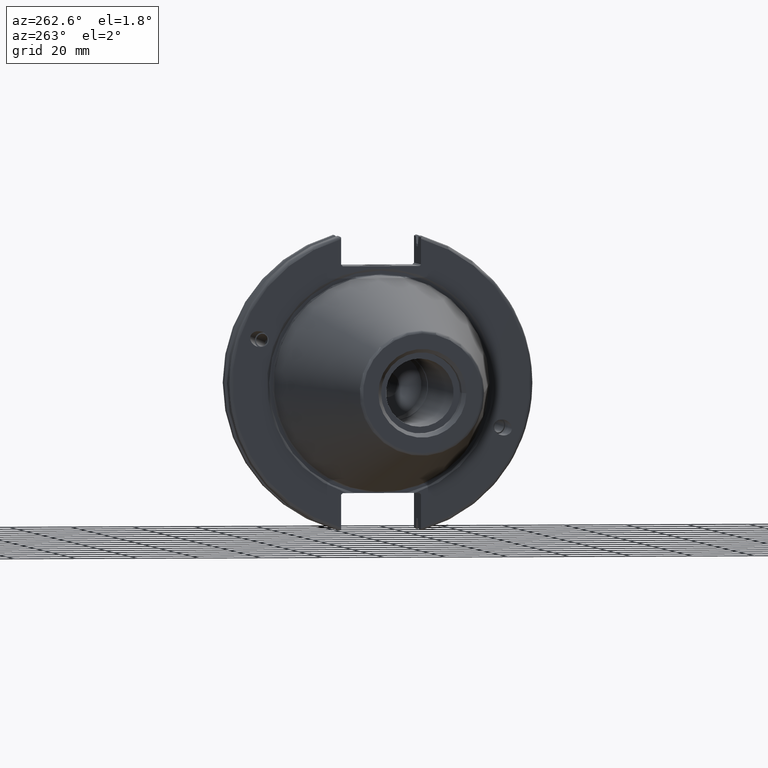
[diagram: clean part render]
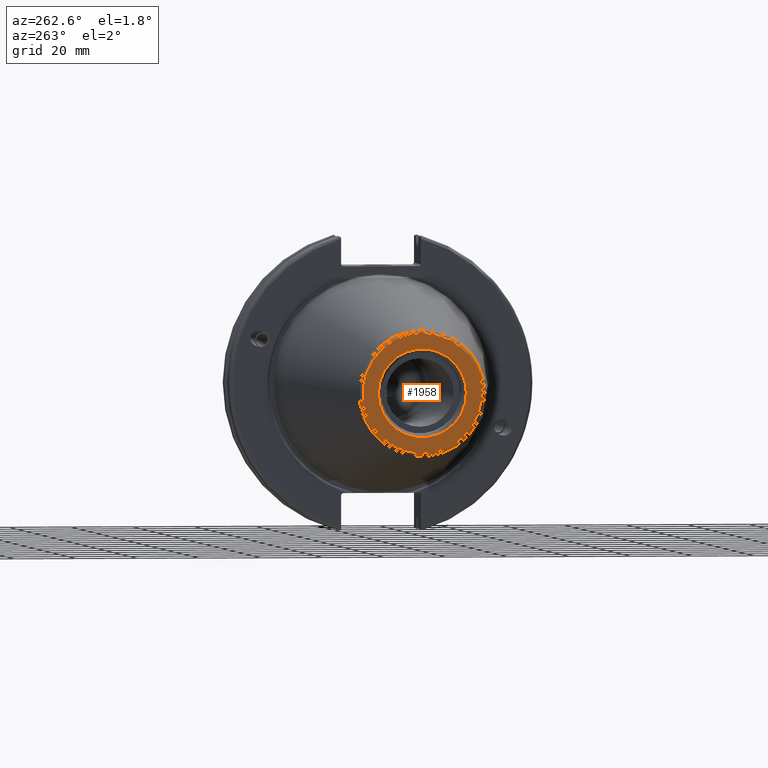
[diagram: same view with one face highlighted and labeled with its STEP entity id]
A machine part, auxiliary view. The second image highlights one B-rep face of the part: STEP entity #1958.
In plain terms, the highlighted planar face has unit normal (-1, 0, 0).
Its self-contained STEP definition (entity closure, byte-faithful):
#89=FACE_BOUND('',#597,.T.);
#113=PLANE('',#2207);
#472=FACE_OUTER_BOUND('',#596,.T.);
#596=EDGE_LOOP('',(#1708));
#597=EDGE_LOOP('',(#1709));
#747=CIRCLE('',#2206,19.2435889303637);
#748=CIRCLE('',#2208,14.2875);
#947=VERTEX_POINT('',#3839);
#948=VERTEX_POINT('',#3843);
#1219=EDGE_CURVE('',#947,#947,#747,.T.);
#1220=EDGE_CURVE('',#948,#948,#748,.T.);
#1708=ORIENTED_EDGE('',*,*,#1219,.F.);
#1709=ORIENTED_EDGE('',*,*,#1220,.T.);
#1958=ADVANCED_FACE('',(#472,#89),#113,.T.);
#2206=AXIS2_PLACEMENT_3D('',#3841,#2728,#2729);
#2207=AXIS2_PLACEMENT_3D('',#3842,#2730,#2731);
#2208=AXIS2_PLACEMENT_3D('',#3844,#2732,#2733);
#2728=DIRECTION('center_axis',(1.,0.,0.));
#2729=DIRECTION('ref_axis',(0.,-1.,1.83697019872103E-16));
#2730=DIRECTION('center_axis',(-1.,0.,0.));
#2731=DIRECTION('ref_axis',(0.,0.,1.));
#2732=DIRECTION('center_axis',(1.,0.,0.));
#2733=DIRECTION('ref_axis',(0.,0.,-1.));
#3839=CARTESIAN_POINT('',(-101.6,-2.35665995876774E-15,19.2435889303637));
#3841=CARTESIAN_POINT('Origin',(-101.6,0.,0.));
#3842=CARTESIAN_POINT('Origin',(-101.6,20.1083333333333,0.));
#3843=CARTESIAN_POINT('',(-101.6,-14.2875,-1.74971411428178E-15));
#3844=CARTESIAN_POINT('Origin',(-101.6,0.,0.));